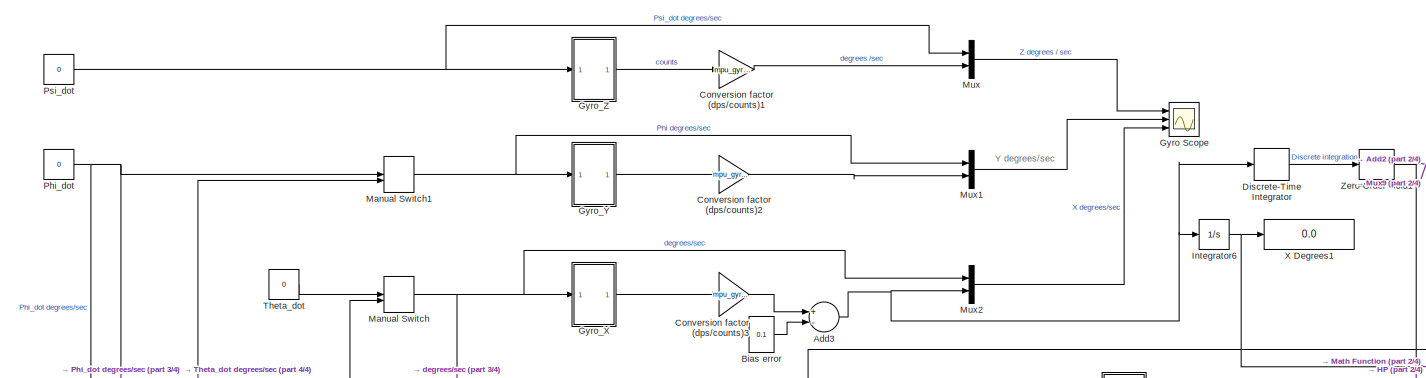
[diagram: root canvas - part 1/4, top center region]
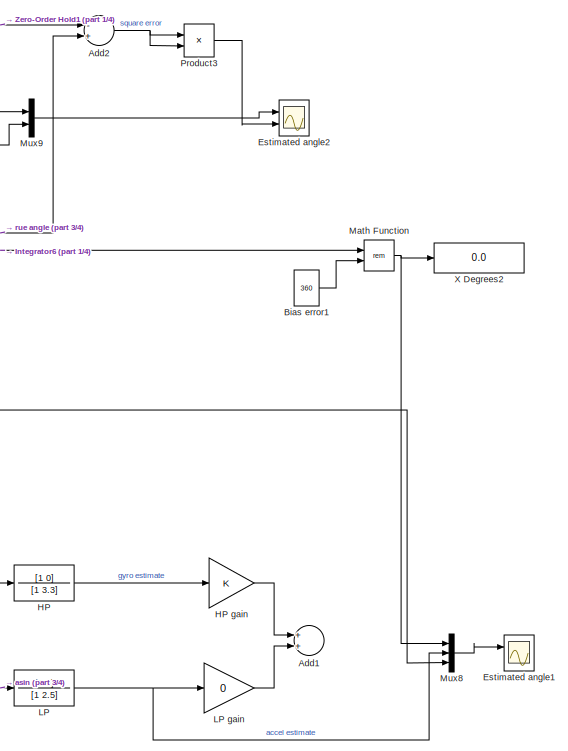
[diagram: root canvas - part 2/4, middle right region]
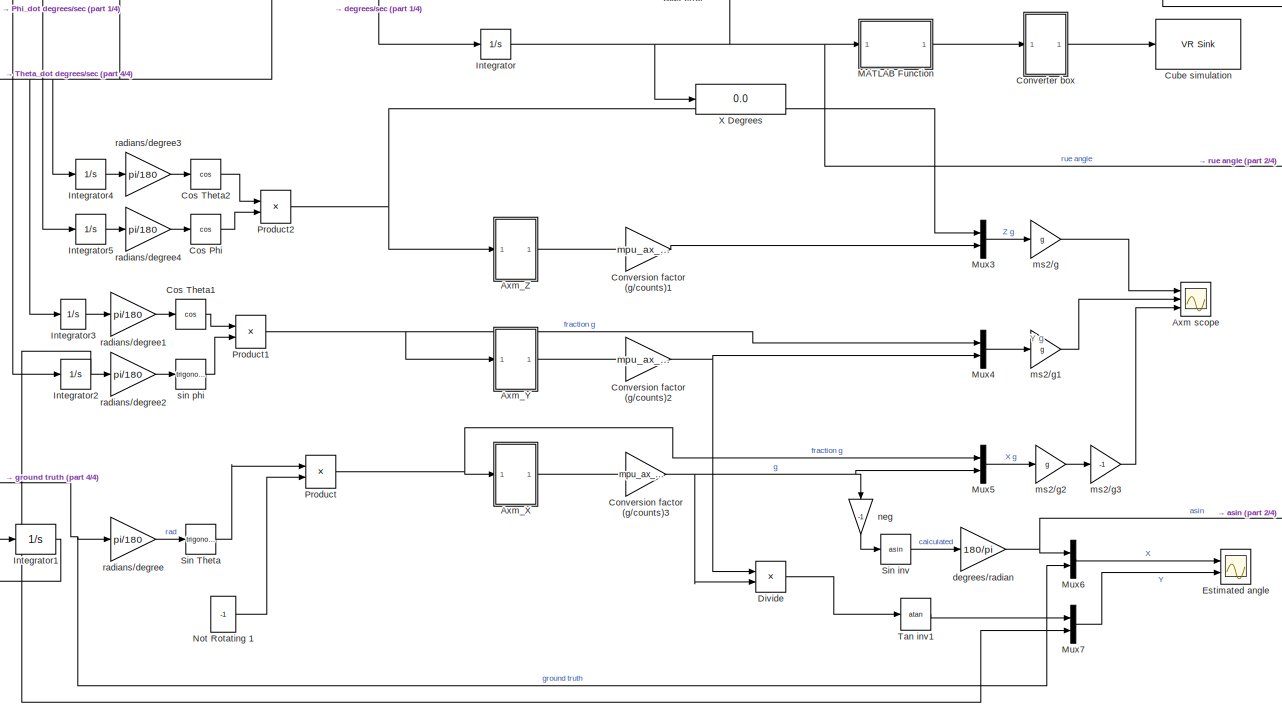
[diagram: root canvas - part 3/4, central region]
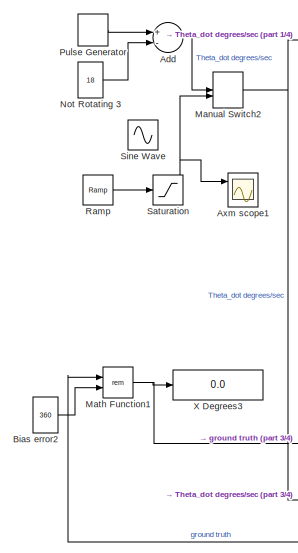
[diagram: root canvas - part 4/4, middle left region]
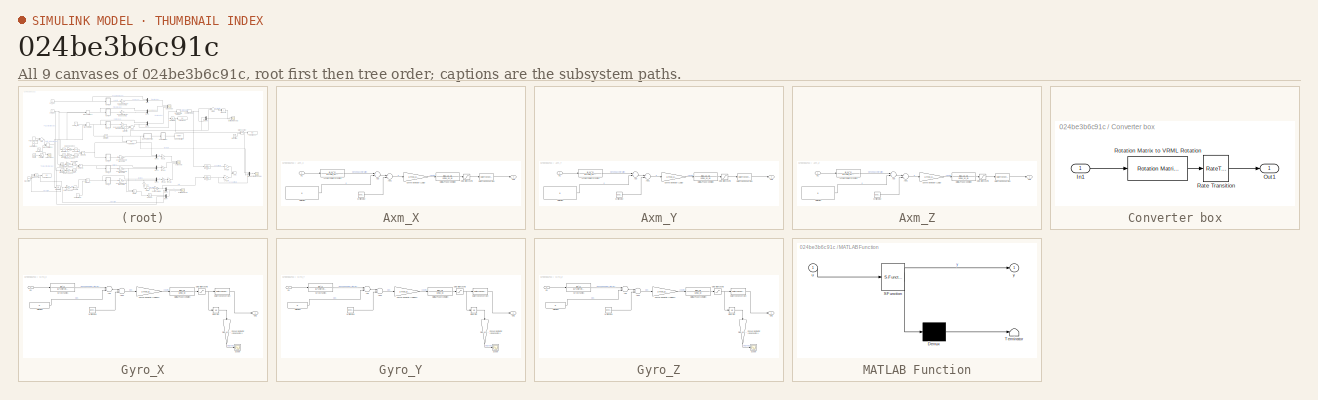
[diagram: thumbnail index - all 9 canvases of the model, root first then tree order]
MODEL slx_024be3b6c91c
KIND model
CONFIG AbsTol = auto
CONFIG FixedStep = 1/mpu_sampling_frequency
CONFIG MaxStep = auto
CONFIG MinStep = auto
CONFIG RelTol = 1e-3
CONFIG SampleTimeConstraint = Unconstrained
CONFIG Solver = ode5
CONFIG SolverMode = Auto
CONFIG SolverName = ode5
CONFIG StartTime = 0.0
CONFIG StopTime = 200
BLOCK [Sum] Add
  InputSameDT = off
  Inputs = +-
  OutDataTypeStr = Inherit: Inherit via internal rule
  Ports = [2, 1]
  SaturateOnIntegerOverflow = off
BLOCK [Sum] Add1
  InputSameDT = off
  OutDataTypeStr = Inherit: Inherit via internal rule
  Ports = [2, 1]
  SaturateOnIntegerOverflow = off
BLOCK [Sum] Add2
  InputSameDT = off
  Inputs = -+
  OutDataTypeStr = Inherit: Inherit via internal rule
  Ports = [2, 1]
  SaturateOnIntegerOverflow = off
BLOCK [Sum] Add3
  InputSameDT = off
  Inputs = +-
  OutDataTypeStr = Inherit: Inherit via internal rule
  Ports = [2, 1]
  SaturateOnIntegerOverflow = off
BLOCK [Scope] Axm scope
  NumInputPorts = 3
  Ports = [3]
  ScopeSpecificationString = Simulink.scopes.TimeScopeBlockCfg('CurrentConfiguration', extmgr.ConfigurationSet(extmgr.Configuration('Core','General UI',true),extmgr.Configuration('Core','Source UI',true),extmgr.Configuration('Sources','WiredSimulink',true,'DataLoggingVariableName','ScopeData3'),extmgr.Configuration('Visuals','Time Domain',true,'SerializedDisplays',{struct('MinYLimReal','-12.3682','MaxYLimReal','12.34623','YLa...<+2784ch>
BLOCK [Scope] Axm scope1
  NumInputPorts = 3
  Ports = [3]
  ScopeSpecificationString = Simulink.scopes.TimeScopeBlockCfg('CurrentConfiguration', extmgr.ConfigurationSet(extmgr.Configuration('Core','General UI',true),extmgr.Configuration('Core','Source UI',true),extmgr.Configuration('Sources','WiredSimulink',true,'DataLoggingVariableName','ScopeData1'),extmgr.Configuration('Visuals','Time Domain',true,'SerializedDisplays',{struct('MinYLimReal','-5.00000','MaxYLimReal','45.00000','YLa...<+2757ch>
BLOCK [SubSystem] Axm_X
  Ports = [1, 1]
  RequestExecContextInheritance = off
  Variant = off
BLOCK [TransferFcn] Axm_X/Accelerometer dynamics
  Commented = through
  Denominator = [1 2*zeta_ax*wn_ax wn_ax^2]
  Numerator = [w_ax^2]
BLOCK [Sum] Axm_X/Add
  InputSameDT = off
  OutDataTypeStr = Inherit: Inherit via internal rule
  Ports = [2, 1]
  SaturateOnIntegerOverflow = off
BLOCK [Sum] Axm_X/Add1
  InputSameDT = off
  OutDataTypeStr = Inherit: Inherit via internal rule
  Ports = [2, 1]
  SaturateOnIntegerOverflow = off
BLOCK [Gain] Axm_X/Conversion factor (LSB//g)
  Gain = 1/mpu_ax_sensitivity
  OutDataTypeStr = Inherit: Inherit via internal rule
  ParamDataTypeStr = Inherit: Inherit via internal rule
  SaturateOnIntegerOverflow = off
BLOCK [TransferFcn] Axm_X/DIgital LPF approximation
  Denominator = [1 mpu_ax_w]
  Numerator = [mpu_ax_w]
BLOCK [DataTypeConversion] Axm_X/Data Type Conversion
  Commented = through
  OutDataTypeStr = int16
  RndMeth = Floor
  SaturateOnIntegerOverflow = off
BLOCK [Inport] Axm_X/In1
  IconDisplay = Port number
BLOCK [Outport] Axm_X/Out1
  IconDisplay = Port number
BLOCK [Saturate] Axm_X/Saturation counts 
  InputPortMap = u0
  LowerLimit = -2^15
  Ports = [1, 1]
  UpperLimit = 2^15
BLOCK [Constant] Axm_X/Static Bias
  Value = 0
BLOCK [Reference] Axm_X/White noise  REF=simulink/Sources/Band-Limited
White Noise
  Ports = [0, 1]
  SourceBlock = simulink/Sources/Band-Limited\nWhite Noise
  SourceType = Band-Limited White Noise.
BLOCK [SubSystem] Axm_Y
  Ports = [1, 1]
  RequestExecContextInheritance = off
  Variant = off
BLOCK [TransferFcn] Axm_Y/Accelerometer dynamics
  Commented = through
  Denominator = [1 2*zeta_ax*wn_ax wn_ax^2]
  Numerator = [w_ax^2]
BLOCK [Sum] Axm_Y/Add
  InputSameDT = off
  OutDataTypeStr = Inherit: Inherit via internal rule
  Ports = [2, 1]
  SaturateOnIntegerOverflow = off
BLOCK [Sum] Axm_Y/Add1
  InputSameDT = off
  OutDataTypeStr = Inherit: Inherit via internal rule
  Ports = [2, 1]
  SaturateOnIntegerOverflow = off
BLOCK [Gain] Axm_Y/Conversion factor (LSB//g)
  Gain = 1/mpu_ax_sensitivity
  OutDataTypeStr = Inherit: Inherit via internal rule
  ParamDataTypeStr = Inherit: Inherit via internal rule
  SaturateOnIntegerOverflow = off
BLOCK [TransferFcn] Axm_Y/DIgital LPF approximation
  Denominator = [1 mpu_ax_w]
  Numerator = [mpu_ax_w]
BLOCK [DataTypeConversion] Axm_Y/Data Type Conversion
  Commented = through
  OutDataTypeStr = int16
  RndMeth = Floor
  SaturateOnIntegerOverflow = off
BLOCK [Inport] Axm_Y/In1
  IconDisplay = Port number
BLOCK [Outport] Axm_Y/Out1
  IconDisplay = Port number
BLOCK [Saturate] Axm_Y/Saturation counts 
  InputPortMap = u0
  LowerLimit = -2^15
  Ports = [1, 1]
  UpperLimit = 2^15
BLOCK [Constant] Axm_Y/Static Bias
  Value = 0
BLOCK [Reference] Axm_Y/White noise  REF=simulink/Sources/Band-Limited
White Noise
  Ports = [0, 1]
  SourceBlock = simulink/Sources/Band-Limited\nWhite Noise
  SourceType = Band-Limited White Noise.
BLOCK [SubSystem] Axm_Z
  Ports = [1, 1]
  RequestExecContextInheritance = off
  Variant = off
BLOCK [TransferFcn] Axm_Z/Accelerometer dynamics
  Commented = through
  Denominator = [1 2*zeta_ax*wn_ax wn_ax^2]
  Numerator = [w_ax^2]
BLOCK [Sum] Axm_Z/Add
  InputSameDT = off
  OutDataTypeStr = Inherit: Inherit via internal rule
  Ports = [2, 1]
  SaturateOnIntegerOverflow = off
BLOCK [Sum] Axm_Z/Add1
  InputSameDT = off
  OutDataTypeStr = Inherit: Inherit via internal rule
  Ports = [2, 1]
  SaturateOnIntegerOverflow = off
BLOCK [Gain] Axm_Z/Conversion factor (LSB//g)
  Gain = 1/mpu_ax_sensitivity
  OutDataTypeStr = Inherit: Inherit via internal rule
  ParamDataTypeStr = Inherit: Inherit via internal rule
  SaturateOnIntegerOverflow = off
BLOCK [TransferFcn] Axm_Z/DIgital LPF approximation
  Denominator = [1 mpu_ax_w]
  Numerator = [mpu_ax_w]
BLOCK [DataTypeConversion] Axm_Z/Data Type Conversion
  Commented = through
  OutDataTypeStr = int16
  RndMeth = Floor
  SaturateOnIntegerOverflow = off
BLOCK [Inport] Axm_Z/In1
  IconDisplay = Port number
BLOCK [Outport] Axm_Z/Out1
  IconDisplay = Port number
BLOCK [Saturate] Axm_Z/Saturation counts 
  InputPortMap = u0
  LowerLimit = -2^15
  Ports = [1, 1]
  UpperLimit = 2^15
BLOCK [Constant] Axm_Z/Static Bias
  Value = 0
BLOCK [Reference] Axm_Z/White noise  REF=simulink/Sources/Band-Limited
White Noise
  Ports = [0, 1]
  SourceBlock = simulink/Sources/Band-Limited\nWhite Noise
  SourceType = Band-Limited White Noise.
BLOCK [Constant] Bias error
  Value = 0.1
BLOCK [Constant] Bias error1
  Value = 360
BLOCK [Constant] Bias error2
  Value = 360
BLOCK [Gain] Conversion factor (dps//counts)1
  Gain = mpu_gyro_sensitivity
  OutDataTypeStr = Inherit: Inherit via internal rule
  ParamDataTypeStr = Inherit: Inherit via internal rule
  SaturateOnIntegerOverflow = off
BLOCK [Gain] Conversion factor (dps//counts)2
  Gain = mpu_gyro_sensitivity
  OutDataTypeStr = Inherit: Inherit via internal rule
  ParamDataTypeStr = Inherit: Inherit via internal rule
  SaturateOnIntegerOverflow = off
BLOCK [Gain] Conversion factor (dps//counts)3
  Gain = mpu_gyro_sensitivity
  OutDataTypeStr = Inherit: Inherit via internal rule
  ParamDataTypeStr = Inherit: Inherit via internal rule
  SaturateOnIntegerOverflow = off
BLOCK [Gain] Conversion factor (g//counts)1
  Gain = mpu_ax_sensitivity
  OutDataTypeStr = Inherit: Inherit via internal rule
  ParamDataTypeStr = Inherit: Inherit via internal rule
  SaturateOnIntegerOverflow = off
BLOCK [Gain] Conversion factor (g//counts)2
  Gain = mpu_ax_sensitivity
  OutDataTypeStr = Inherit: Inherit via internal rule
  ParamDataTypeStr = Inherit: Inherit via internal rule
  SaturateOnIntegerOverflow = off
BLOCK [Gain] Conversion factor (g//counts)3
  Gain = mpu_ax_sensitivity
  OutDataTypeStr = Inherit: Inherit via internal rule
  ParamDataTypeStr = Inherit: Inherit via internal rule
  SaturateOnIntegerOverflow = off
BLOCK [SubSystem] Converter box
  Commented = on
  Ports = [1, 1]
  RequestExecContextInheritance = off
  Variant = off
BLOCK [Inport] Converter box/In1
  IconDisplay = Port number
BLOCK [Outport] Converter box/Out1
  IconDisplay = Port number
BLOCK [RateTransition] Converter box/Rate Transition
BLOCK [Reference] Converter box/Rotation Matrix to VRML Rotation  REF=vrlib/Utilities/Rotation Matrix
to VRML Rotation
  Ports = [1, 1]
  SourceBlock = vrlib/Utilities/Rotation Matrix\nto VRML Rotation
  SourceType = Rotation Matrix to VRML Rotation
BLOCK [Trigonometry] Cos Phi
  Operator = cos
  Ports = [1, 1]
BLOCK [Trigonometry] Cos Theta1
  Operator = cos
  Ports = [1, 1]
BLOCK [Trigonometry] Cos Theta2
  Operator = cos
  Ports = [1, 1]
BLOCK [Reference] Cube simulation  REF=vrlib/VR Sink
  Commented = on
  InstantiateOnLoad = on
  Ports = [1]
  SourceBlock = vrlib/VR Sink
  SourceType = Virtual Reality Sink
BLOCK [DiscreteIntegrator] Discrete-Time Integrator
  ICPrevOutput = DiscIntNeverNeededParam
  ICPrevScaledInput = DiscIntNeverNeededParam
  InitialConditionSetting = State (most efficient)
  Ports = [1, 1]
  SampleTime = 1/mpu_sampling_frequency
BLOCK [Product] Divide
  InputSameDT = off
  Inputs = */
  OutDataTypeStr = Inherit: Inherit via internal rule
  Ports = [2, 1]
  RndMeth = Floor
  SaturateOnIntegerOverflow = off
BLOCK [Scope] Estimated angle
  NumInputPorts = 2
  Ports = [2]
  ScopeSpecificationString = Simulink.scopes.TimeScopeBlockCfg('CurrentConfiguration', extmgr.ConfigurationSet(extmgr.Configuration('Core','General UI',true),extmgr.Configuration('Core','Source UI',true),extmgr.Configuration('Sources','WiredSimulink',true,'DataLoggingVariableName','ScopeData1'),extmgr.Configuration('Visuals','Time Domain',true,'SerializedDisplays',{struct('MinYLimReal','-146.25','MaxYLimReal','416.25','YLabel...<+2063ch>
BLOCK [Scope] Estimated angle1
  NumInputPorts = 2
  Ports = [2]
  ScopeSpecificationString = Simulink.scopes.TimeScopeBlockCfg('CurrentConfiguration', extmgr.ConfigurationSet(extmgr.Configuration('Core','General UI',true),extmgr.Configuration('Core','Source UI',true),extmgr.Configuration('Sources','WiredSimulink',true,'DataLoggingVariableName','ScopeData2'),extmgr.Configuration('Visuals','Time Domain',true,'SerializedDisplays',{struct('MinYLimReal','-526.55','MaxYLimReal','3838.95','YLabe...<+2102ch>
BLOCK [Scope] Estimated angle2
  NumInputPorts = 2
  Ports = [2]
  ScopeSpecificationString = Simulink.scopes.TimeScopeBlockCfg('CurrentConfiguration', extmgr.ConfigurationSet(extmgr.Configuration('Core','General UI',true),extmgr.Configuration('Core','Source UI',true),extmgr.Configuration('Sources','WiredSimulink',true,'DataLoggingVariableName','ScopeData3'),extmgr.Configuration('Visuals','Time Domain',true,'SerializedDisplays',{struct('MinYLimReal','-900.00704','MaxYLimReal','8100.00078',...<+2099ch>
BLOCK [Scope] Gyro Scope
  NumInputPorts = 3
  Ports = [3]
  ScopeSpecificationString = Simulink.scopes.TimeScopeBlockCfg('CurrentConfiguration', extmgr.ConfigurationSet(extmgr.Configuration('Core','General UI',true),extmgr.Configuration('Core','Source UI',true),extmgr.Configuration('Sources','WiredSimulink',true,'DataLoggingVariableName','ScopeData1'),extmgr.Configuration('Visuals','Time Domain',true,'SerializedDisplays',{struct('MinYLimReal','-0.5273','MaxYLimReal','0.511','YLabelR...<+2841ch>
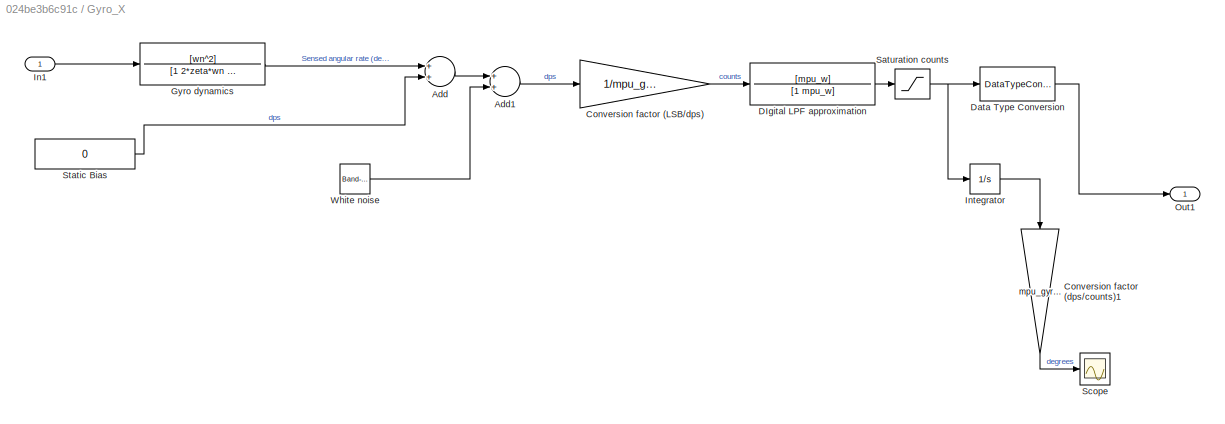
BLOCK [SubSystem] Gyro_X
  Ports = [1, 1]
  RequestExecContextInheritance = off
  Variant = off
BLOCK [Sum] Gyro_X/Add
  InputSameDT = off
  OutDataTypeStr = Inherit: Inherit via internal rule
  Ports = [2, 1]
  SaturateOnIntegerOverflow = off
BLOCK [Sum] Gyro_X/Add1
  InputSameDT = off
  OutDataTypeStr = Inherit: Inherit via internal rule
  Ports = [2, 1]
  SaturateOnIntegerOverflow = off
BLOCK [Gain] Gyro_X/Conversion factor (LSB//dps)
  Gain = 1/mpu_gyro_sensitivity
  OutDataTypeStr = Inherit: Inherit via internal rule
  ParamDataTypeStr = Inherit: Inherit via internal rule
  SaturateOnIntegerOverflow = off
BLOCK [Gain] Gyro_X/Conversion factor (dps//counts)1
  Gain = mpu_gyro_sensitivity
  OutDataTypeStr = Inherit: Inherit via internal rule
  ParamDataTypeStr = Inherit: Inherit via internal rule
  SaturateOnIntegerOverflow = off
BLOCK [TransferFcn] Gyro_X/DIgital LPF approximation
  Denominator = [1 mpu_w]
  Numerator = [mpu_w]
BLOCK [DataTypeConversion] Gyro_X/Data Type Conversion
  Commented = through
  OutDataTypeStr = int16
  RndMeth = Floor
  SaturateOnIntegerOverflow = off
BLOCK [TransferFcn] Gyro_X/Gyro dynamics
  Commented = through
  Denominator = [1 2*zeta*wn wn^2]
  Numerator = [wn^2]
BLOCK [Inport] Gyro_X/In1
  IconDisplay = Port number
BLOCK [Integrator] Gyro_X/Integrator
  Ports = [1, 1]
BLOCK [Outport] Gyro_X/Out1
  IconDisplay = Port number
BLOCK [Saturate] Gyro_X/Saturation counts 
  InputPortMap = u0
  LowerLimit = -2^15
  Ports = [1, 1]
  UpperLimit = 2^15
BLOCK [Scope] Gyro_X/Scope
  Ports = [1]
  ScopeSpecificationString = C++SS(StrPVP('SaveName','ScopeData'),StrPVP('LimitDataPoints','on'),StrPVP('DataFormat','Array'),StrPVP('Decimation','1'),StrPVP('BlockParamSampleInput','off'))
BLOCK [Constant] Gyro_X/Static Bias
  Value = 0
BLOCK [Reference] Gyro_X/White noise  REF=simulink/Sources/Band-Limited
White Noise
  Ports = [0, 1]
  SourceBlock = simulink/Sources/Band-Limited\nWhite Noise
  SourceType = Band-Limited White Noise.
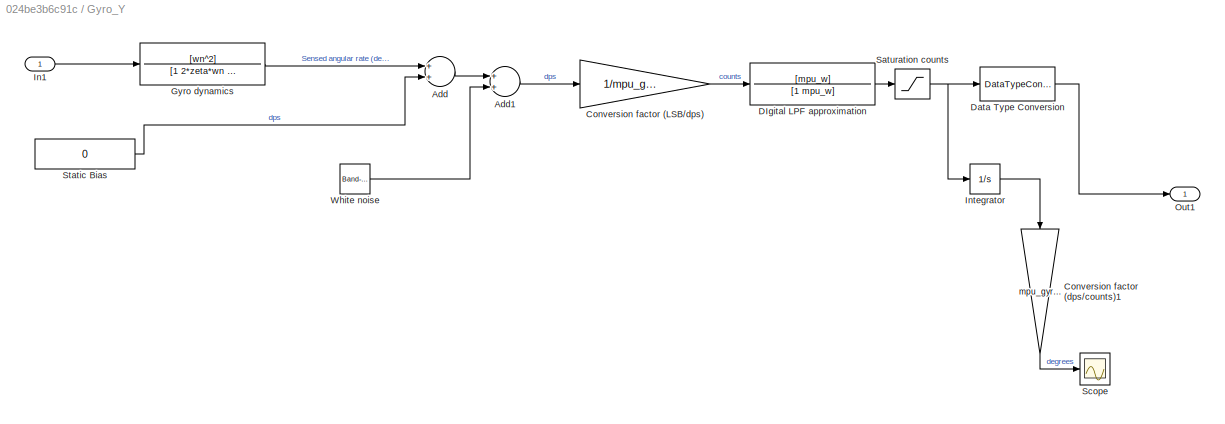
BLOCK [SubSystem] Gyro_Y
  Ports = [1, 1]
  RequestExecContextInheritance = off
  Variant = off
BLOCK [Sum] Gyro_Y/Add
  InputSameDT = off
  OutDataTypeStr = Inherit: Inherit via internal rule
  Ports = [2, 1]
  SaturateOnIntegerOverflow = off
BLOCK [Sum] Gyro_Y/Add1
  InputSameDT = off
  OutDataTypeStr = Inherit: Inherit via internal rule
  Ports = [2, 1]
  SaturateOnIntegerOverflow = off
BLOCK [Gain] Gyro_Y/Conversion factor (LSB//dps)
  Gain = 1/mpu_gyro_sensitivity
  OutDataTypeStr = Inherit: Inherit via internal rule
  ParamDataTypeStr = Inherit: Inherit via internal rule
  SaturateOnIntegerOverflow = off
BLOCK [Gain] Gyro_Y/Conversion factor (dps//counts)1
  Gain = mpu_gyro_sensitivity
  OutDataTypeStr = Inherit: Inherit via internal rule
  ParamDataTypeStr = Inherit: Inherit via internal rule
  SaturateOnIntegerOverflow = off
BLOCK [TransferFcn] Gyro_Y/DIgital LPF approximation
  Denominator = [1 mpu_w]
  Numerator = [mpu_w]
BLOCK [DataTypeConversion] Gyro_Y/Data Type Conversion
  Commented = through
  OutDataTypeStr = int16
  RndMeth = Floor
  SaturateOnIntegerOverflow = off
BLOCK [TransferFcn] Gyro_Y/Gyro dynamics
  Commented = through
  Denominator = [1 2*zeta*wn wn^2]
  Numerator = [wn^2]
BLOCK [Inport] Gyro_Y/In1
  IconDisplay = Port number
BLOCK [Integrator] Gyro_Y/Integrator
  Ports = [1, 1]
BLOCK [Outport] Gyro_Y/Out1
  IconDisplay = Port number
BLOCK [Saturate] Gyro_Y/Saturation counts 
  InputPortMap = u0
  LowerLimit = -2^15
  Ports = [1, 1]
  UpperLimit = 2^15
BLOCK [Scope] Gyro_Y/Scope
  Ports = [1]
  ScopeSpecificationString = C++SS(StrPVP('SaveName','ScopeData'),StrPVP('LimitDataPoints','on'),StrPVP('DataFormat','Array'),StrPVP('Decimation','1'),StrPVP('BlockParamSampleInput','off'))
BLOCK [Constant] Gyro_Y/Static Bias
  Value = 0
BLOCK [Reference] Gyro_Y/White noise  REF=simulink/Sources/Band-Limited
White Noise
  Ports = [0, 1]
  SourceBlock = simulink/Sources/Band-Limited\nWhite Noise
  SourceType = Band-Limited White Noise.
BLOCK [SubSystem] Gyro_Z
  Ports = [1, 1]
  RequestExecContextInheritance = off
  Variant = off
BLOCK [Sum] Gyro_Z/Add
  InputSameDT = off
  OutDataTypeStr = Inherit: Inherit via internal rule
  Ports = [2, 1]
  SaturateOnIntegerOverflow = off
BLOCK [Sum] Gyro_Z/Add1
  InputSameDT = off
  OutDataTypeStr = Inherit: Inherit via internal rule
  Ports = [2, 1]
  SaturateOnIntegerOverflow = off
BLOCK [Gain] Gyro_Z/Conversion factor (LSB//dps)
  Gain = 1/mpu_gyro_sensitivity
  OutDataTypeStr = Inherit: Inherit via internal rule
  ParamDataTypeStr = Inherit: Inherit via internal rule
  SaturateOnIntegerOverflow = off
BLOCK [Gain] Gyro_Z/Conversion factor (dps//counts)1
  Gain = mpu_gyro_sensitivity
  OutDataTypeStr = Inherit: Inherit via internal rule
  ParamDataTypeStr = Inherit: Inherit via internal rule
  SaturateOnIntegerOverflow = off
BLOCK [TransferFcn] Gyro_Z/DIgital LPF approximation
  Denominator = [1 mpu_w]
  Numerator = [mpu_w]
BLOCK [DataTypeConversion] Gyro_Z/Data Type Conversion
  Commented = through
  OutDataTypeStr = int16
  RndMeth = Floor
  SaturateOnIntegerOverflow = off
BLOCK [TransferFcn] Gyro_Z/Gyro dynamics
  Commented = through
  Denominator = [1 2*zeta*wn wn^2]
  Numerator = [wn^2]
BLOCK [Inport] Gyro_Z/In1
  IconDisplay = Port number
BLOCK [Integrator] Gyro_Z/Integrator
  Ports = [1, 1]
BLOCK [Outport] Gyro_Z/Out1
  IconDisplay = Port number
BLOCK [Saturate] Gyro_Z/Saturation counts 
  InputPortMap = u0
  LowerLimit = -2^15
  Ports = [1, 1]
  UpperLimit = 2^15
BLOCK [Scope] Gyro_Z/Scope
  Ports = [1]
  ScopeSpecificationString = C++SS(StrPVP('SaveName','ScopeData'),StrPVP('LimitDataPoints','on'),StrPVP('DataFormat','Array'),StrPVP('Decimation','1'),StrPVP('BlockParamSampleInput','off'))
BLOCK [Constant] Gyro_Z/Static Bias
  Value = 0
BLOCK [Reference] Gyro_Z/White noise  REF=simulink/Sources/Band-Limited
White Noise
  Ports = [0, 1]
  SourceBlock = simulink/Sources/Band-Limited\nWhite Noise
  SourceType = Band-Limited White Noise.
BLOCK [TransferFcn] HP
  Commented = through
  Denominator = [1 3.3]
  Numerator = [1 0]
BLOCK [Gain] HP gain
  OutDataTypeStr = Inherit: Inherit via internal rule
  ParamDataTypeStr = Inherit: Inherit via internal rule
  SaturateOnIntegerOverflow = off
BLOCK [Integrator] Integrator
  Ports = [1, 1]
BLOCK [Integrator] Integrator1
  Ports = [1, 1]
BLOCK [Integrator] Integrator2
  Ports = [1, 1]
BLOCK [Integrator] Integrator3
  Ports = [1, 1]
BLOCK [Integrator] Integrator4
  Ports = [1, 1]
BLOCK [Integrator] Integrator5
  Ports = [1, 1]
BLOCK [Integrator] Integrator6
  Ports = [1, 1]
BLOCK [TransferFcn] LP
  Commented = through
  Denominator = [1 2.5]
  Numerator = [2.5]
BLOCK [Gain] LP gain
  Gain = 0
  OutDataTypeStr = Inherit: Inherit via internal rule
  ParamDataTypeStr = Inherit: Inherit via internal rule
  SaturateOnIntegerOverflow = off
BLOCK [SubSystem] MATLAB Function
  Commented = on
  ErrorFcn = Stateflow.Translate.translate
  PermitHierarchicalResolution = ExplicitOnly
  Ports = [1, 1]
  RequestExecContextInheritance = off
  SFBlockType = MATLAB Function
  TreatAsAtomicUnit = on
  Variant = off
BLOCK [Demux] MATLAB Function/ Demux 
  Outputs = 1
  Ports = [1, 1]
BLOCK [S-Function] MATLAB Function/ SFunction 
  EnableBusSupport = on
  FunctionName = sf_sfun
  PortCounts = [1 2]
  Ports = [1, 2]
  SFunctionDeploymentMode = off
  Tag = Stateflow S-Function mpu_imu 2
BLOCK [Terminator] MATLAB Function/ Terminator 
BLOCK [Inport] MATLAB Function/u
  IconDisplay = Port number
BLOCK [Outport] MATLAB Function/y
  IconDisplay = Port number
BLOCK [ManualSwitch] Manual Switch
  CurrentSetting = 0
BLOCK [ManualSwitch] Manual Switch1
BLOCK [ManualSwitch] Manual Switch2
  CurrentSetting = 0
BLOCK [Math] Math Function
  Operator = rem
  Ports = [2, 1]
  RndMeth = Zero
BLOCK [Math] Math Function1
  Operator = rem
  Ports = [2, 1]
  RndMeth = Zero
BLOCK [Mux] Mux
  DisplayOption = bar
  Inputs = 2
  Ports = [2, 1]
BLOCK [Mux] Mux1
  DisplayOption = bar
  Inputs = 2
  Ports = [2, 1]
BLOCK [Mux] Mux2
  DisplayOption = bar
  Inputs = 2
  Ports = [2, 1]
BLOCK [Mux] Mux3
  DisplayOption = bar
  Inputs = 2
  Ports = [2, 1]
BLOCK [Mux] Mux4
  DisplayOption = bar
  Inputs = 2
  Ports = [2, 1]
BLOCK [Mux] Mux5
  DisplayOption = bar
  Inputs = 2
  Ports = [2, 1]
BLOCK [Mux] Mux6
  DisplayOption = bar
  Inputs = 2
  Ports = [2, 1]
BLOCK [Mux] Mux7
  DisplayOption = bar
  Inputs = 2
  Ports = [2, 1]
BLOCK [Mux] Mux8
  DisplayOption = bar
  Inputs = 3
  Ports = [3, 1]
BLOCK [Mux] Mux9
  DisplayOption = bar
  Inputs = 2
  Ports = [2, 1]
BLOCK [Constant] Not Rotating 1
  Value = -1
BLOCK [Constant] Not Rotating 3
  Value = 18
BLOCK [Constant] Phi_dot
  Value = 0
BLOCK [Product] Product
  InputSameDT = off
  OutDataTypeStr = Inherit: Inherit via internal rule
  Ports = [2, 1]
  RndMeth = Floor
  SaturateOnIntegerOverflow = off
BLOCK [Product] Product1
  InputSameDT = off
  OutDataTypeStr = Inherit: Inherit via internal rule
  Ports = [2, 1]
  RndMeth = Floor
  SaturateOnIntegerOverflow = off
BLOCK [Product] Product2
  InputSameDT = off
  OutDataTypeStr = Inherit: Inherit via internal rule
  Ports = [2, 1]
  RndMeth = Floor
  SaturateOnIntegerOverflow = off
BLOCK [Product] Product3
  InputSameDT = off
  OutDataTypeStr = Inherit: Inherit via internal rule
  Ports = [2, 1]
  RndMeth = Floor
  SaturateOnIntegerOverflow = off
BLOCK [Constant] Psi_dot
  Value = 0
BLOCK [DiscretePulseGenerator] Pulse Generator
  Amplitude = 36
  Period = 10
  Ports = [0, 1]
  PulseType = Time based
  PulseWidth = 50
BLOCK [Reference] Ramp  REF=simulink/Sources/Ramp
  Ports = [0, 1]
  SourceBlock = simulink/Sources/Ramp
  SourceType = Ramp
BLOCK [Saturate] Saturation
  InputPortMap = u0
  Ports = [1, 1]
  UpperLimit = 40
BLOCK [Trigonometry] Sin Theta
  Ports = [1, 1]
BLOCK [Trigonometry] Sin inv
  Operator = asin
  Ports = [1, 1]
BLOCK [Sin] Sine Wave
  Amplitude = 36
  Frequency = pi/10
  Ports = [0, 1]
  SampleTime = 0
BLOCK [Trigonometry] Tan inv1
  Operator = atan
  Ports = [1, 1]
BLOCK [Constant] Theta_dot
  Value = 0
BLOCK [Display] X Degrees
  Ports = [1]
BLOCK [Display] X Degrees1
  Ports = [1]
BLOCK [Display] X Degrees2
  Ports = [1]
BLOCK [Display] X Degrees3
  Ports = [1]
BLOCK [ZeroOrderHold] Zero-Order Hold1
  SampleTime = 1/mpu_sampling_frequency
BLOCK [Gain] degrees//radian
  Gain = 180/pi
  OutDataTypeStr = Inherit: Inherit via internal rule
  ParamDataTypeStr = Inherit: Inherit via internal rule
  SaturateOnIntegerOverflow = off
BLOCK [Gain] ms2//g
  Gain = g
  OutDataTypeStr = Inherit: Inherit via internal rule
  ParamDataTypeStr = Inherit: Inherit via internal rule
  SaturateOnIntegerOverflow = off
BLOCK [Gain] ms2//g1
  Gain = g
  OutDataTypeStr = Inherit: Inherit via internal rule
  ParamDataTypeStr = Inherit: Inherit via internal rule
  SaturateOnIntegerOverflow = off
BLOCK [Gain] ms2//g2
  Gain = g
  OutDataTypeStr = Inherit: Inherit via internal rule
  ParamDataTypeStr = Inherit: Inherit via internal rule
  SaturateOnIntegerOverflow = off
BLOCK [Gain] ms2//g3
  Gain = -1
  OutDataTypeStr = Inherit: Inherit via internal rule
  ParamDataTypeStr = Inherit: Inherit via internal rule
  SaturateOnIntegerOverflow = off
BLOCK [Gain] neg
  Gain = -1
  OutDataTypeStr = Inherit: Inherit via internal rule
  ParamDataTypeStr = Inherit: Inherit via internal rule
  SaturateOnIntegerOverflow = off
BLOCK [Gain] radians//degree
  Gain = pi/180
  OutDataTypeStr = Inherit: Inherit via internal rule
  ParamDataTypeStr = Inherit: Inherit via internal rule
  SaturateOnIntegerOverflow = off
BLOCK [Gain] radians//degree1
  Gain = pi/180
  OutDataTypeStr = Inherit: Inherit via internal rule
  ParamDataTypeStr = Inherit: Inherit via internal rule
  SaturateOnIntegerOverflow = off
BLOCK [Gain] radians//degree2
  Gain = pi/180
  OutDataTypeStr = Inherit: Inherit via internal rule
  ParamDataTypeStr = Inherit: Inherit via internal rule
  SaturateOnIntegerOverflow = off
BLOCK [Gain] radians//degree3
  Gain = pi/180
  OutDataTypeStr = Inherit: Inherit via internal rule
  ParamDataTypeStr = Inherit: Inherit via internal rule
  SaturateOnIntegerOverflow = off
BLOCK [Gain] radians//degree4
  Gain = pi/180
  OutDataTypeStr = Inherit: Inherit via internal rule
  ParamDataTypeStr = Inherit: Inherit via internal rule
  SaturateOnIntegerOverflow = off
BLOCK [Trigonometry] sin phi
  Ports = [1, 1]
ANNOTATION (root): Y degrees/sec
ANNOTATION (root): Y g
NET Add2:1 -> Product3:1, Product3:2
NET Add3:1 -> Discrete-Time Integrator:1, Integrator6:1, Mux2:2
LINE Add:1 -> Manual Switch2:1
LINE Axm_X/Accelerometer dynamics:1 -> Axm_X/Add:1
LINE Axm_X/Add1:1 -> Axm_X/Conversion factor (LSB//g):1
LINE Axm_X/Add:1 -> Axm_X/Add1:1
LINE Axm_X/Conversion factor (LSB//g):1 -> Axm_X/DIgital LPF approximation:1
LINE Axm_X/DIgital LPF approximation:1 -> Axm_X/Saturation counts :1
LINE Axm_X/Data Type Conversion:1 -> Axm_X/Out1:1
LINE Axm_X/In1:1 -> Axm_X/Accelerometer dynamics:1
LINE Axm_X/Saturation counts :1 -> Axm_X/Data Type Conversion:1
LINE Axm_X/Static Bias:1 -> Axm_X/Add:2
LINE Axm_X/White noise:1 -> Axm_X/Add1:2
LINE Axm_X:1 -> Conversion factor (g//counts)3:1
LINE Axm_Y/Accelerometer dynamics:1 -> Axm_Y/Add:1
LINE Axm_Y/Add1:1 -> Axm_Y/Conversion factor (LSB//g):1
LINE Axm_Y/Add:1 -> Axm_Y/Add1:1
LINE Axm_Y/Conversion factor (LSB//g):1 -> Axm_Y/DIgital LPF approximation:1
LINE Axm_Y/DIgital LPF approximation:1 -> Axm_Y/Saturation counts :1
LINE Axm_Y/Data Type Conversion:1 -> Axm_Y/Out1:1
LINE Axm_Y/In1:1 -> Axm_Y/Accelerometer dynamics:1
LINE Axm_Y/Saturation counts :1 -> Axm_Y/Data Type Conversion:1
LINE Axm_Y/Static Bias:1 -> Axm_Y/Add:2
LINE Axm_Y/White noise:1 -> Axm_Y/Add1:2
LINE Axm_Y:1 -> Conversion factor (g//counts)2:1
LINE Axm_Z/Accelerometer dynamics:1 -> Axm_Z/Add:1
LINE Axm_Z/Add1:1 -> Axm_Z/Conversion factor (LSB//g):1
LINE Axm_Z/Add:1 -> Axm_Z/Add1:1
LINE Axm_Z/Conversion factor (LSB//g):1 -> Axm_Z/DIgital LPF approximation:1
LINE Axm_Z/DIgital LPF approximation:1 -> Axm_Z/Saturation counts :1
LINE Axm_Z/Data Type Conversion:1 -> Axm_Z/Out1:1
LINE Axm_Z/In1:1 -> Axm_Z/Accelerometer dynamics:1
LINE Axm_Z/Saturation counts :1 -> Axm_Z/Data Type Conversion:1
LINE Axm_Z/Static Bias:1 -> Axm_Z/Add:2
LINE Axm_Z/White noise:1 -> Axm_Z/Add1:2
LINE Axm_Z:1 -> Conversion factor (g//counts)1:1
LINE Bias error1:1 -> Math Function:2
LINE Bias error2:1 -> Math Function1:2
LINE Bias error:1 -> Add3:2
LINE Conversion factor (dps//counts)1:1 -> Mux:2
LINE Conversion factor (dps//counts)2:1 -> Mux1:2
LINE Conversion factor (dps//counts)3:1 -> Add3:1
LINE Conversion factor (g//counts)1:1 -> Mux3:2
NET Conversion factor (g//counts)2:1 -> Divide:1, Mux4:2
NET Conversion factor (g//counts)3:1 -> Divide:2, Mux5:2, neg:1
LINE Converter box/In1:1 -> Converter box/Rotation Matrix to VRML Rotation:1
LINE Converter box/Rate Transition:1 -> Converter box/Out1:1
LINE Converter box/Rotation Matrix to VRML Rotation:1 -> Converter box/Rate Transition:1
LINE Converter box:1 -> Cube simulation:1
LINE Cos Phi:1 -> Product2:2
LINE Cos Theta1:1 -> Product1:1
LINE Cos Theta2:1 -> Product2:1
LINE Discrete-Time Integrator:1 -> Zero-Order Hold1:1
LINE Divide:1 -> Tan inv1:1
LINE Gyro_X/Add1:1 -> Gyro_X/Conversion factor (LSB//dps):1
LINE Gyro_X/Add:1 -> Gyro_X/Add1:1
LINE Gyro_X/Conversion factor (LSB//dps):1 -> Gyro_X/DIgital LPF approximation:1
LINE Gyro_X/Conversion factor (dps//counts)1:1 -> Gyro_X/Scope:1
LINE Gyro_X/DIgital LPF approximation:1 -> Gyro_X/Saturation counts :1
LINE Gyro_X/Data Type Conversion:1 -> Gyro_X/Out1:1
LINE Gyro_X/Gyro dynamics:1 -> Gyro_X/Add:1
LINE Gyro_X/In1:1 -> Gyro_X/Gyro dynamics:1
LINE Gyro_X/Integrator:1 -> Gyro_X/Conversion factor (dps//counts)1:1
NET Gyro_X/Saturation counts :1 -> Gyro_X/Data Type Conversion:1, Gyro_X/Integrator:1
LINE Gyro_X/Static Bias:1 -> Gyro_X/Add:2
LINE Gyro_X/White noise:1 -> Gyro_X/Add1:2
LINE Gyro_X:1 -> Conversion factor (dps//counts)3:1
LINE Gyro_Y/Add1:1 -> Gyro_Y/Conversion factor (LSB//dps):1
LINE Gyro_Y/Add:1 -> Gyro_Y/Add1:1
LINE Gyro_Y/Conversion factor (LSB//dps):1 -> Gyro_Y/DIgital LPF approximation:1
LINE Gyro_Y/Conversion factor (dps//counts)1:1 -> Gyro_Y/Scope:1
LINE Gyro_Y/DIgital LPF approximation:1 -> Gyro_Y/Saturation counts :1
LINE Gyro_Y/Data Type Conversion:1 -> Gyro_Y/Out1:1
LINE Gyro_Y/Gyro dynamics:1 -> Gyro_Y/Add:1
LINE Gyro_Y/In1:1 -> Gyro_Y/Gyro dynamics:1
LINE Gyro_Y/Integrator:1 -> Gyro_Y/Conversion factor (dps//counts)1:1
NET Gyro_Y/Saturation counts :1 -> Gyro_Y/Data Type Conversion:1, Gyro_Y/Integrator:1
LINE Gyro_Y/Static Bias:1 -> Gyro_Y/Add:2
LINE Gyro_Y/White noise:1 -> Gyro_Y/Add1:2
LINE Gyro_Y:1 -> Conversion factor (dps//counts)2:1
LINE Gyro_Z/Add1:1 -> Gyro_Z/Conversion factor (LSB//dps):1
LINE Gyro_Z/Add:1 -> Gyro_Z/Add1:1
LINE Gyro_Z/Conversion factor (LSB//dps):1 -> Gyro_Z/DIgital LPF approximation:1
LINE Gyro_Z/Conversion factor (dps//counts)1:1 -> Gyro_Z/Scope:1
LINE Gyro_Z/DIgital LPF approximation:1 -> Gyro_Z/Saturation counts :1
LINE Gyro_Z/Data Type Conversion:1 -> Gyro_Z/Out1:1
LINE Gyro_Z/Gyro dynamics:1 -> Gyro_Z/Add:1
LINE Gyro_Z/In1:1 -> Gyro_Z/Gyro dynamics:1
LINE Gyro_Z/Integrator:1 -> Gyro_Z/Conversion factor (dps//counts)1:1
NET Gyro_Z/Saturation counts :1 -> Gyro_Z/Data Type Conversion:1, Gyro_Z/Integrator:1
LINE Gyro_Z/Static Bias:1 -> Gyro_Z/Add:2
LINE Gyro_Z/White noise:1 -> Gyro_Z/Add1:2
LINE Gyro_Z:1 -> Conversion factor (dps//counts)1:1
LINE HP gain:1 -> Add1:1
LINE HP:1 -> HP gain:1
LINE Integrator1:1 -> Math Function1:1
NET Integrator2:1 -> Mux7:2, radians//degree2:1
LINE Integrator3:1 -> radians//degree1:1
LINE Integrator4:1 -> radians//degree3:1
LINE Integrator5:1 -> radians//degree4:1
NET Integrator6:1 -> Math Function:1, X Degrees1:1
NET Integrator:1 -> Add2:2, MATLAB Function:1, Mux8:3, Mux9:1, X Degrees:1
LINE LP gain:1 -> Add1:2
NET LP:1 -> LP gain:1, Mux8:2
LINE MATLAB Function:1 -> Converter box:1
NET Manual Switch1:1 -> Gyro_Y:1, Mux1:1
NET Manual Switch2:1 -> Integrator1:1, Integrator3:1, Integrator4:1, Manual Switch1:2, Manual Switch:2
NET Manual Switch:1 -> Gyro_X:1, Integrator:1, Mux2:1
NET Math Function1:1 -> Mux6:2, X Degrees3:1, radians//degree:1
NET Math Function:1 -> Mux8:1, X Degrees2:1
LINE Mux1:1 -> Gyro Scope:2
LINE Mux2:1 -> Gyro Scope:3
LINE Mux3:1 -> ms2//g:1
LINE Mux4:1 -> ms2//g1:1
LINE Mux5:1 -> ms2//g2:1
LINE Mux6:1 -> Estimated angle:1
LINE Mux7:1 -> Estimated angle:2
LINE Mux8:1 -> Estimated angle1:1
LINE Mux9:1 -> Estimated angle2:1
LINE Mux:1 -> Gyro Scope:1
LINE Not Rotating 1:1 -> Product:2
LINE Not Rotating 3:1 -> Add:2
NET Phi_dot:1 -> Integrator2:1, Integrator5:1, Manual Switch1:1
NET Product1:1 -> Axm_Y:1, Mux4:1
NET Product2:1 -> Axm_Z:1, Mux3:1
LINE Product3:1 -> Estimated angle2:2
NET Product:1 -> Axm_X:1, Mux5:1
NET Psi_dot:1 -> Gyro_Z:1, Mux:1
LINE Pulse Generator:1 -> Add:1
LINE Ramp:1 -> Saturation:1
NET Saturation:1 -> Axm scope1:1, Manual Switch2:2
LINE Sin Theta:1 -> Product:1
LINE Sin inv:1 -> degrees//radian:1
LINE Tan inv1:1 -> Mux7:1
LINE Theta_dot:1 -> Manual Switch:1
NET Zero-Order Hold1:1 -> Add2:1, HP:1, Mux9:2
NET degrees//radian:1 -> LP:1, Mux6:1
LINE ms2//g1:1 -> Axm scope:2
LINE ms2//g2:1 -> ms2//g3:1
LINE ms2//g3:1 -> Axm scope:3
LINE ms2//g:1 -> Axm scope:1
LINE neg:1 -> Sin inv:1
LINE radians//degree1:1 -> Cos Theta1:1
LINE radians//degree2:1 -> sin phi:1
LINE radians//degree3:1 -> Cos Theta2:1
LINE radians//degree4:1 -> Cos Phi:1
LINE radians//degree:1 -> Sin Theta:1
LINE sin phi:1 -> Product1:2
note: NET lines group one-source signal fan-out (src -> all destinations, sorted); 1:1 wires keep LINE
CHART MATLAB Function states=1 transitions=1
  STATE_LABEL 'eML_blk_kernel()'
  STATE_LABEL 'SCRIPT:\nfunction y = fcn(u)\n%#codegen\n\ny = rotx(u);'
